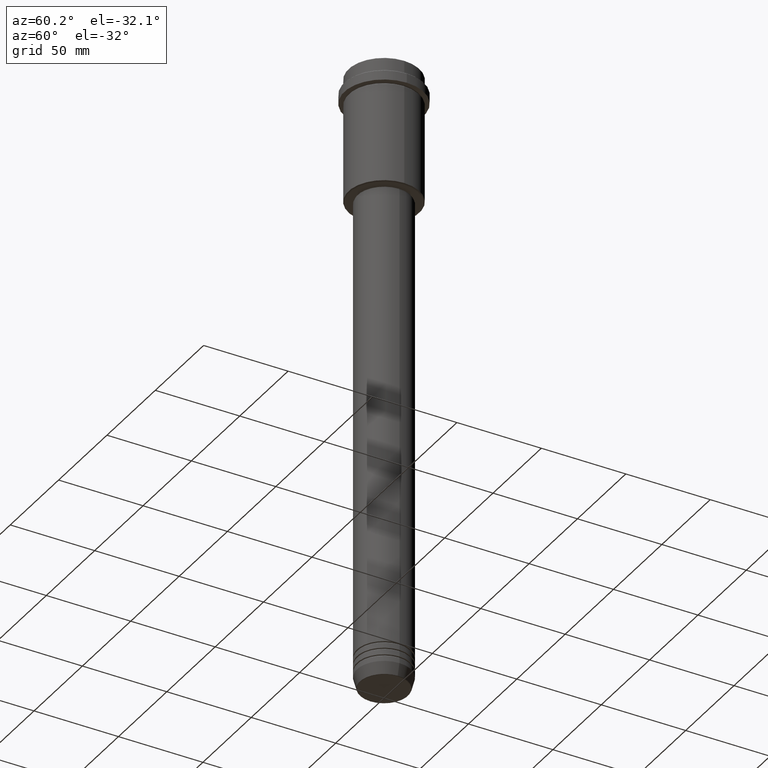
[diagram: clean part render]
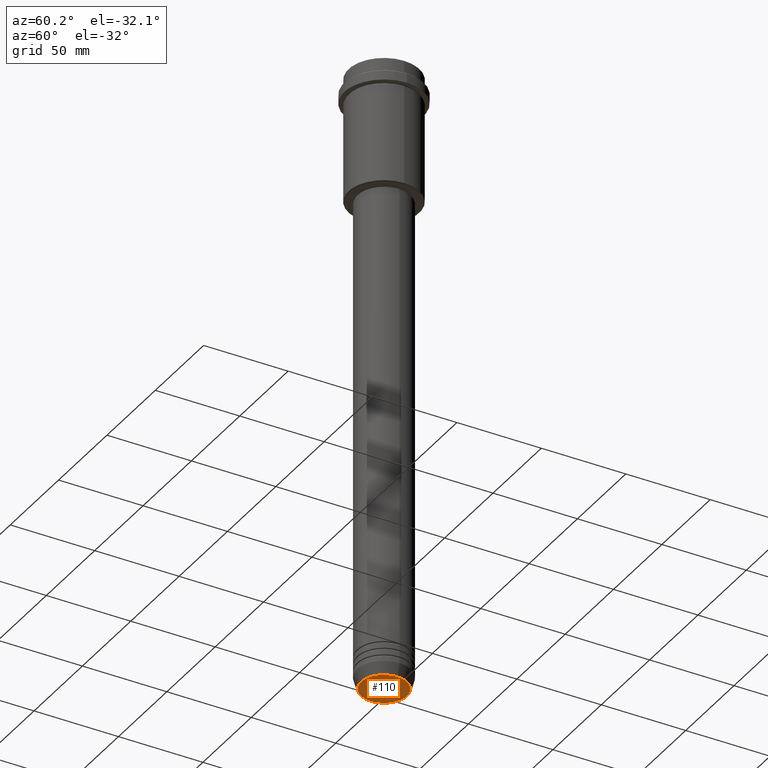
[diagram: same view with one face highlighted and labeled with its STEP entity id]
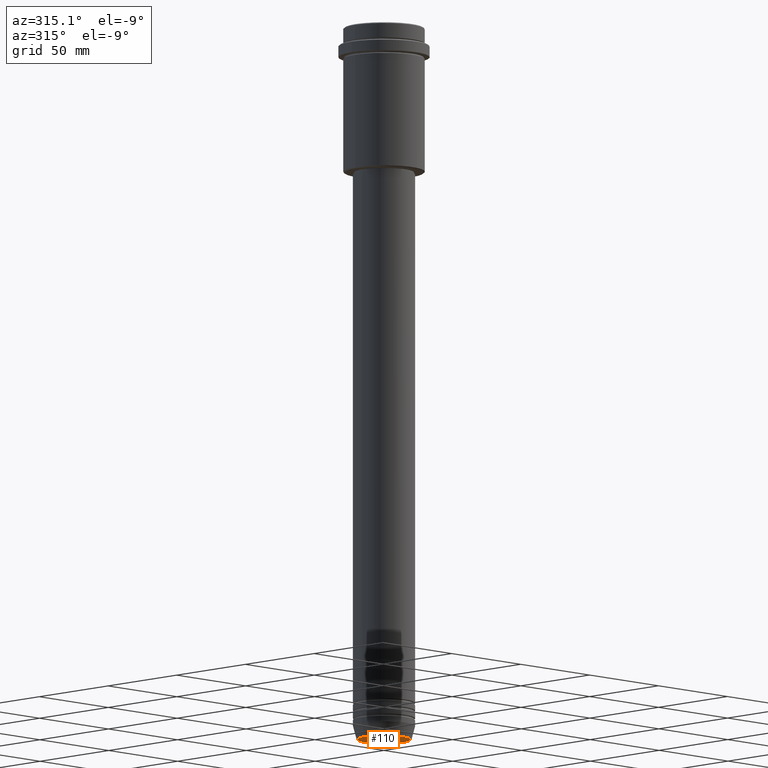
[diagram: same view with one face highlighted and labeled with its STEP entity id]
A machine part, auxiliary view. The second image highlights one B-rep face of the part: STEP entity #110.
A second angle (auxiliary view) of the same face is appended — the face is thin or edge-on in the first view.
In plain terms, the highlighted planar face has unit normal (0, -0, 1).
Its self-contained STEP definition (entity closure, byte-faithful):
#57 = AXIS2_PLACEMENT_3D ( 'NONE', #92, #330, #1411 ) ;
#63 = VERTEX_POINT ( 'NONE', #1186 ) ;
#92 = CARTESIAN_POINT ( 'NONE',  ( 0.000000000000000000, 0.000000000000000000, -370.0000000000000568 ) ) ;
#110 = ADVANCED_FACE ( 'NONE', ( #125 ), #653, .F. ) ;
#125 = FACE_OUTER_BOUND ( 'NONE', #212, .T. ) ;
#212 = EDGE_LOOP ( 'NONE', ( #637, #1059 ) ) ;
#296 = CARTESIAN_POINT ( 'NONE',  ( -13.74069215899265828, 1.712322416342415986E-15, -370.0000000000000568 ) ) ;
#309 = DIRECTION ( 'NONE',  ( 1.000000000000000000, 0.000000000000000000, 0.000000000000000000 ) ) ;
#330 = DIRECTION ( 'NONE',  ( 0.000000000000000000, -0.000000000000000000, 1.000000000000000000 ) ) ;
#377 = CIRCLE ( 'NONE', #723, 13.74069215899265828 ) ;
#637 = ORIENTED_EDGE ( 'NONE', *, *, #1301, .T. ) ;
#653 = PLANE ( 'NONE',  #57 ) ;
#723 = AXIS2_PLACEMENT_3D ( 'NONE', #1416, #1149, #1135 ) ;
#834 = CIRCLE ( 'NONE', #1319, 13.74069215899265828 ) ;
#840 = VERTEX_POINT ( 'NONE', #296 ) ;
#986 = DIRECTION ( 'NONE',  ( 0.000000000000000000, 0.000000000000000000, -1.000000000000000000 ) ) ;
#1059 = ORIENTED_EDGE ( 'NONE', *, *, #1188, .T. ) ;
#1135 = DIRECTION ( 'NONE',  ( 1.000000000000000000, 0.000000000000000000, 0.000000000000000000 ) ) ;
#1149 = DIRECTION ( 'NONE',  ( 0.000000000000000000, 0.000000000000000000, -1.000000000000000000 ) ) ;
#1186 = CARTESIAN_POINT ( 'NONE',  ( 13.74069215899265828, 0.000000000000000000, -370.0000000000000568 ) ) ;
#1188 = EDGE_CURVE ( 'NONE', #840, #63, #834, .T. ) ;
#1301 = EDGE_CURVE ( 'NONE', #63, #840, #377, .T. ) ;
#1302 = CARTESIAN_POINT ( 'NONE',  ( 0.000000000000000000, 0.000000000000000000, -370.0000000000000568 ) ) ;
#1319 = AXIS2_PLACEMENT_3D ( 'NONE', #1302, #986, #309 ) ;
#1411 = DIRECTION ( 'NONE',  ( 1.000000000000000000, 0.000000000000000000, 0.000000000000000000 ) ) ;
#1416 = CARTESIAN_POINT ( 'NONE',  ( 0.000000000000000000, 0.000000000000000000, -370.0000000000000568 ) ) ;